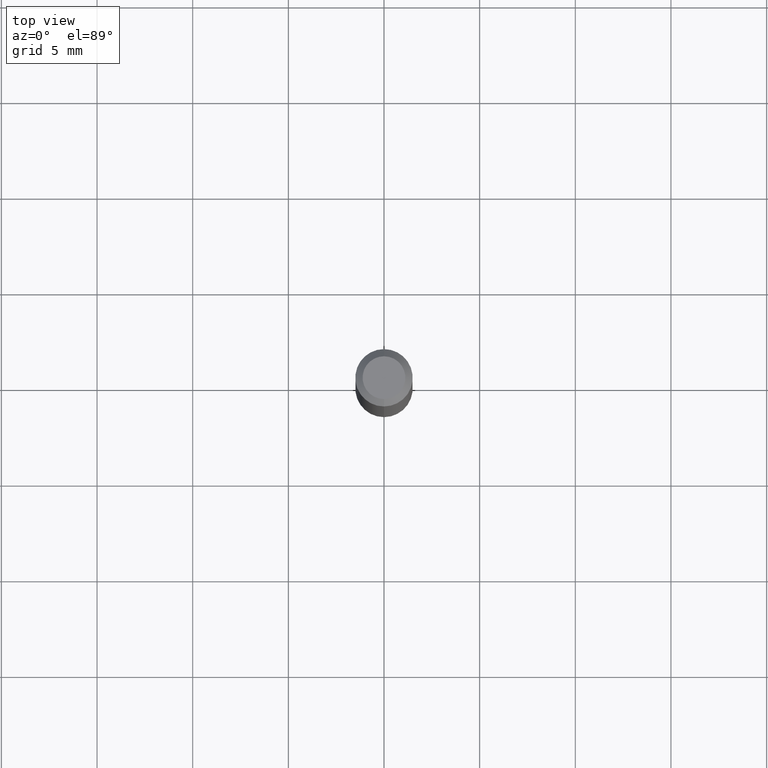
[diagram: clean part render]
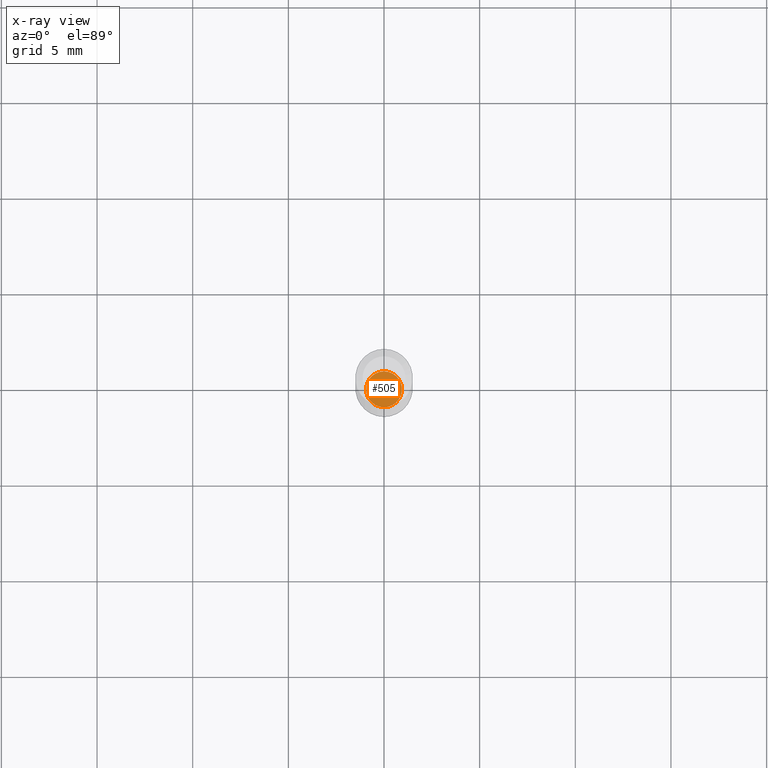
[diagram: x-ray — body ghosted, one internal face saturated and labeled with its STEP entity id]
A machine part, top view, then the same camera in x-ray: the body is ghosted and one INTERNAL B-rep face — a face not visible from any outside direction — is saturated and labeled: STEP entity #505.
In plain terms, the highlighted planar face has unit normal (-0, 0, 1).
Its self-contained STEP definition (entity closure, byte-faithful):
#22 = CARTESIAN_POINT ( 'NONE',  ( 3.389102151617828259E-29, -4.838948623425209322E-15, -1.385899999999999910 ) ) ;
#46 = EDGE_LOOP ( 'NONE', ( #340, #312 ) ) ;
#47 = DIRECTION ( 'NONE',  ( -6.982962677686265133E-15, -1.000000000000000000, 0.000000000000000000 ) ) ;
#48 = FACE_OUTER_BOUND ( 'NONE', #46, .T. ) ;
#49 = VERTEX_POINT ( 'NONE', #377 ) ;
#198 = CARTESIAN_POINT ( 'NONE',  ( -2.576713228065893242E-16, -0.03690000000000483865, -1.385899999999999910 ) ) ;
#219 = CARTESIAN_POINT ( 'NONE',  ( 3.389102151617828259E-29, -4.838948623425209322E-15, -1.385899999999999910 ) ) ;
#222 = DIRECTION ( 'NONE',  ( -2.445416084578849928E-29, 3.491556839184075306E-15, 1.000000000000000000 ) ) ;
#224 = CIRCLE ( 'NONE', #403, 0.03690000000000000224 ) ;
#228 = DIRECTION ( 'NONE',  ( -2.445416084578850208E-29, 3.491556839184075306E-15, 1.000000000000000000 ) ) ;
#261 = CARTESIAN_POINT ( 'NONE',  ( 3.389102151617828259E-29, -4.838948623425209322E-15, -1.385899999999999910 ) ) ;
#267 = AXIS2_PLACEMENT_3D ( 'NONE', #261, #228, #427 ) ;
#298 = AXIS2_PLACEMENT_3D ( 'NONE', #219, #222, #344 ) ;
#301 = EDGE_CURVE ( 'NONE', #49, #416, #224, .T. ) ;
#312 = ORIENTED_EDGE ( 'NONE', *, *, #301, .F. ) ;
#340 = ORIENTED_EDGE ( 'NONE', *, *, #490, .F. ) ;
#344 = DIRECTION ( 'NONE',  ( -6.982962677686265922E-15, -1.000000000000000000, 3.491556839184075306E-15 ) ) ;
#377 = CARTESIAN_POINT ( 'NONE',  ( 2.639666263349108125E-16, 0.03689999999999515889, -1.385899999999999910 ) ) ;
#403 = AXIS2_PLACEMENT_3D ( 'NONE', #22, #410, #47 ) ;
#406 = PLANE ( 'NONE',  #298 ) ;
#410 = DIRECTION ( 'NONE',  ( -2.445416084578850208E-29, 3.491556839184075306E-15, 1.000000000000000000 ) ) ;
#416 = VERTEX_POINT ( 'NONE', #198 ) ;
#422 = CIRCLE ( 'NONE', #267, 0.03690000000000000224 ) ;
#427 = DIRECTION ( 'NONE',  ( -6.982962677686265133E-15, -1.000000000000000000, 0.000000000000000000 ) ) ;
#490 = EDGE_CURVE ( 'NONE', #416, #49, #422, .T. ) ;
#505 = ADVANCED_FACE ( 'NONE', ( #48 ), #406, .F. ) ;